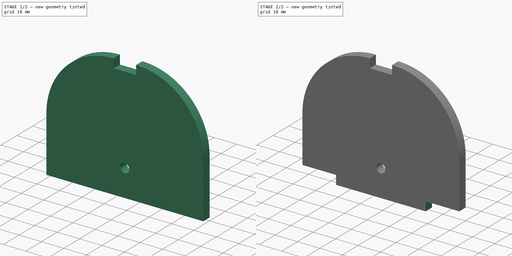
[diagram: build sequence overview — one tinted view per stage of 2, left to right]
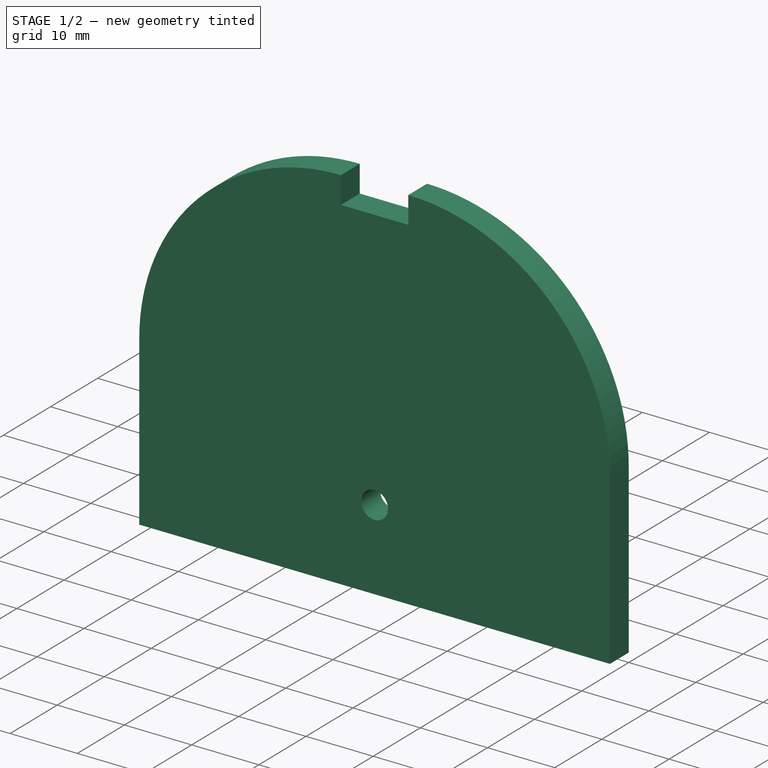
[diagram: stage 1 of 2 — iso view after this stage's code; geometry added in this stage tinted green]
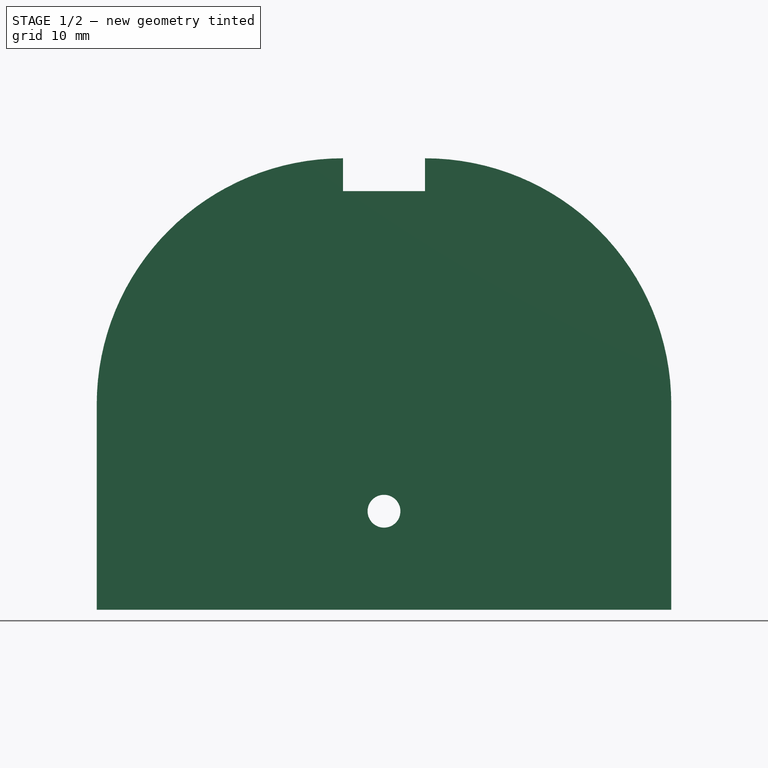
[diagram: stage 1 of 2 — front view after this stage's code; geometry added in this stage tinted green]
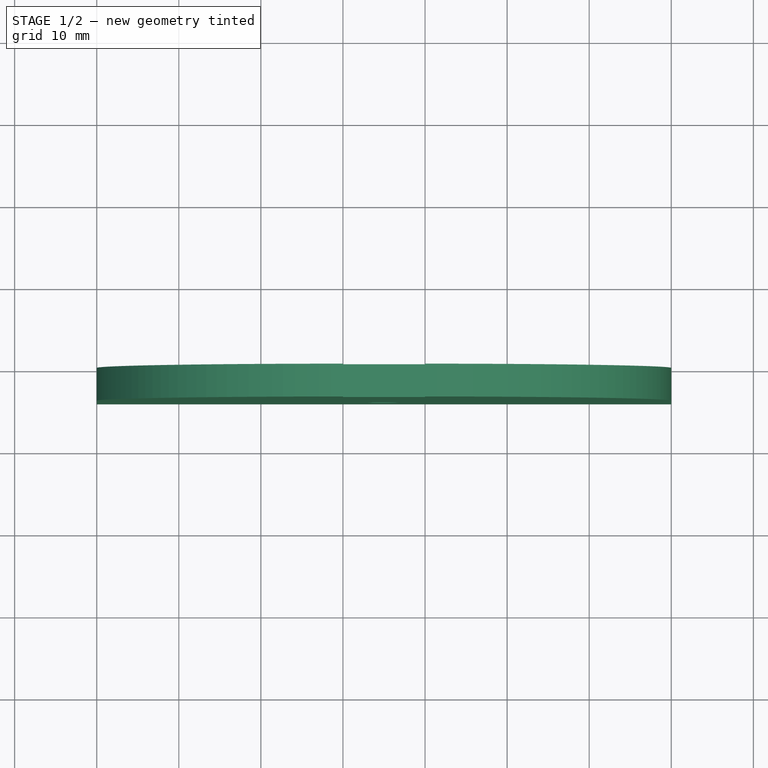
[diagram: stage 1 of 2 — top view after this stage's code; geometry added in this stage tinted green]
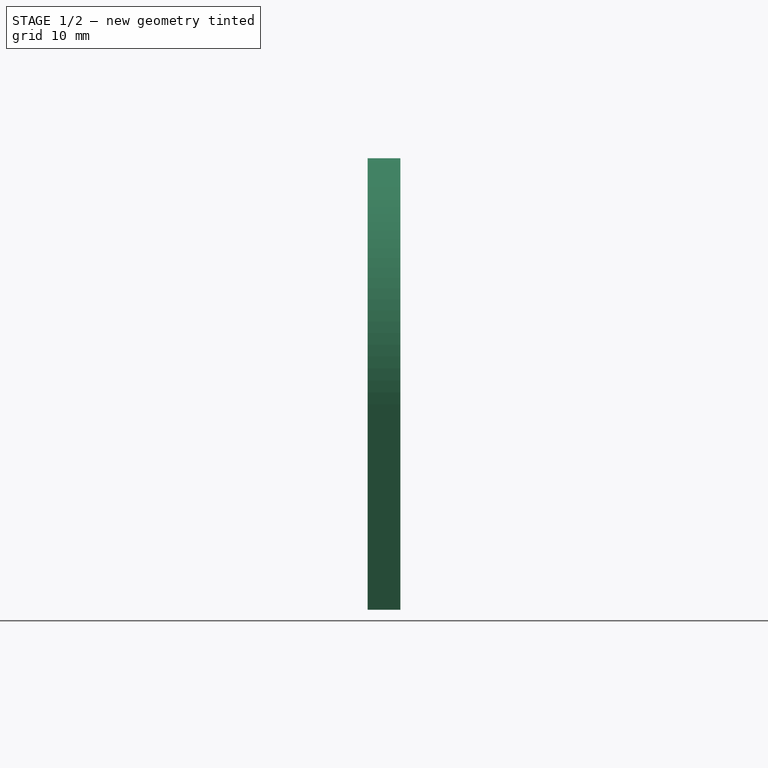
[diagram: stage 1 of 2 — right view after this stage's code; geometry added in this stage tinted green]
FCSTD DOCUMENT  (FreeCAD 1.0R39319 (Git))
Label: chassis_wheel_side
License: All rights reserved
LicenseURL: https://en.wikipedia.org/wiki/All_rights_reserved
objects: Sketcher::SketchObject×4, PartDesign::Pad×1, PartDesign::Pocket×1, PartDesign::Body×1
note: 15 computed .brp shape members not serialized (recipe doc carries the construction recipe); baked Part::Feature solids carry a one-line shape summary decoded from their .brp

FEATURE [Sketcher::SketchObject] Sketch
  ArcFitTolerance = 1e-06
  AttachmentSupport = -> [XZ_Plane]
  FullyConstrained = true
  MakeInternals = false
  MapMode = 5
  Placement = pos=(0,0,0) rot=(1,0,0;1.5708rad)
  sketch-geometry (14):
    g0: LineSegment [constr] StartX=35 StartY=55 StartZ=0 EndX=30 EndY=55 EndZ=0
    g1: LineSegment StartX=0 StartY=25 StartZ=0 EndX=0 EndY=0 EndZ=0
    g2: LineSegment StartX=70 StartY=25 StartZ=0 EndX=70 EndY=0 EndZ=0
    g3: ArcOfCircle CenterX=40 CenterY=25 CenterZ=0 NormalX=0 NormalY=0 NormalZ=1 AngleXU=0 Radius=30 StartAngle=0 EndAngle=1.5708
    g4: GeomPoint [constr] X=70 Y=55 Z=0
    g5: ArcOfCircle CenterX=30 CenterY=25 CenterZ=0 NormalX=0 NormalY=0 NormalZ=1 AngleXU=0 Radius=30 StartAngle=1.5708 EndAngle=3.14159
    g6: GeomPoint [constr] X=0 Y=55 Z=0
    g7: LineSegment StartX=0 StartY=0 StartZ=0 EndX=70 EndY=0 EndZ=0
    g8: LineSegment [constr] StartX=35 StartY=24 StartZ=0 EndX=35 EndY=0 EndZ=0
    g9: LineSegment [constr] StartX=35 StartY=55 StartZ=0 EndX=40 EndY=55 EndZ=0
    g10: Circle CenterX=35 CenterY=12 CenterZ=0 NormalX=0 NormalY=0 NormalZ=1 AngleXU=0 Radius=2
    g11: LineSegment StartX=30 StartY=55 StartZ=0 EndX=30 EndY=51 EndZ=0
    g12: LineSegment StartX=30 StartY=51 StartZ=0 EndX=40 EndY=51 EndZ=0
    g13: LineSegment StartX=40 StartY=51 StartZ=0 EndX=40 EndY=55 EndZ=0
  constraints (36):
    c: Horizontal(g0)
    c: Vertical(g1)
    c: DistanceY(g1,g6) = 55
    c: DistanceX(g4) = 70
    c: Vertical(g2)
    c: PointOnObject(g4,g0)
    c: PointOnObject(g4,g2)
    c: Tangent(g2,g3) = 1.5708
    c: PointOnObject(g6,g0)
    c: PointOnObject(g6,g1)
    c: Tangent(g0,g5) = -1.5708
    c: Tangent(g1,g5) = -1.5708
    c: Equal(g5,g3)
    c: Coincident(g7,g1)
    c: Coincident(g7,g2)
    c: Horizontal(g7)
    c: Symmetric(g7,g7,g8)
    c: PointOnObject(g0,g8)
    c: Coincident(g9,g0)
    c: Tangent(g9,g3) = 1.5708
    c: Horizontal(g9)
    c: Symmetric(g8,g8,g10)
    c: Diameter(g10) = 4
    c: DistanceY(g8,g10) = 12
    c: PointOnObject(g2,g-1)
    c: PointOnObject(g1,g-2)
    c: Coincident(g11,g0)
    c: Vertical(g11)
    c: Coincident(g12,g11)
    c: Horizontal(g12)
    c: Coincident(g13,g12)
    c: Coincident(g13,g3)
    c: Vertical(g13)
    c: DistanceY(g13,g13) = 4
    c: DistanceX(g12,g12) = 10
    c: Vertical(g8)
FEATURE [PartDesign::Pad] Pad
  Direction = (0,-1,2e-16)
  Length = 4
  Length2 = 10
  Placement = pos=(0,0,0) rot=(1,0,0;1.5708rad)
  Profile = -> Sketch
  ReferenceAxis = -> Sketch [N_Axis]
  Refine = true
  Suppressed = false
  Type = 0
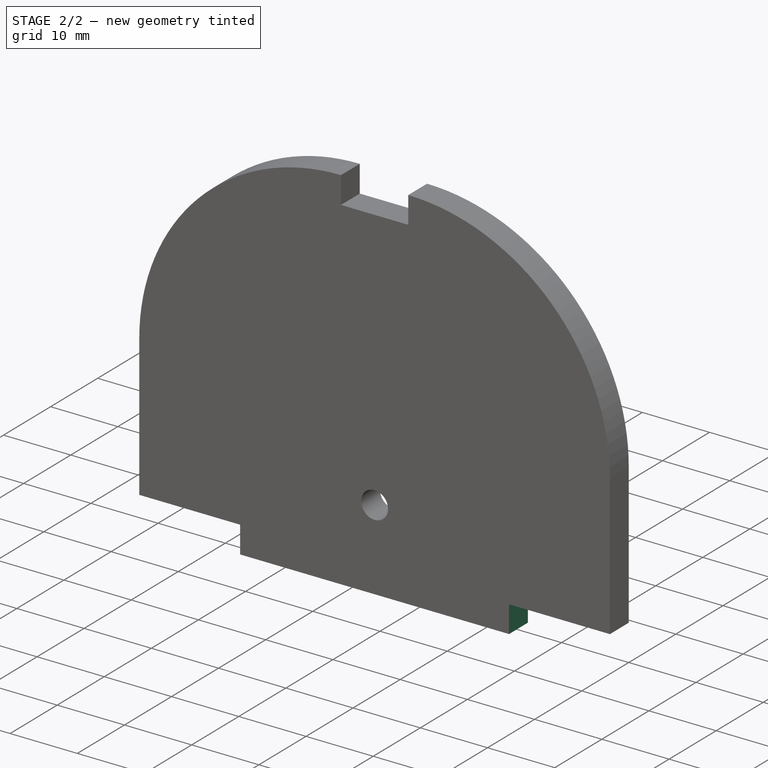
[diagram: stage 2 of 2 — iso view after this stage's code; geometry added in this stage tinted green]
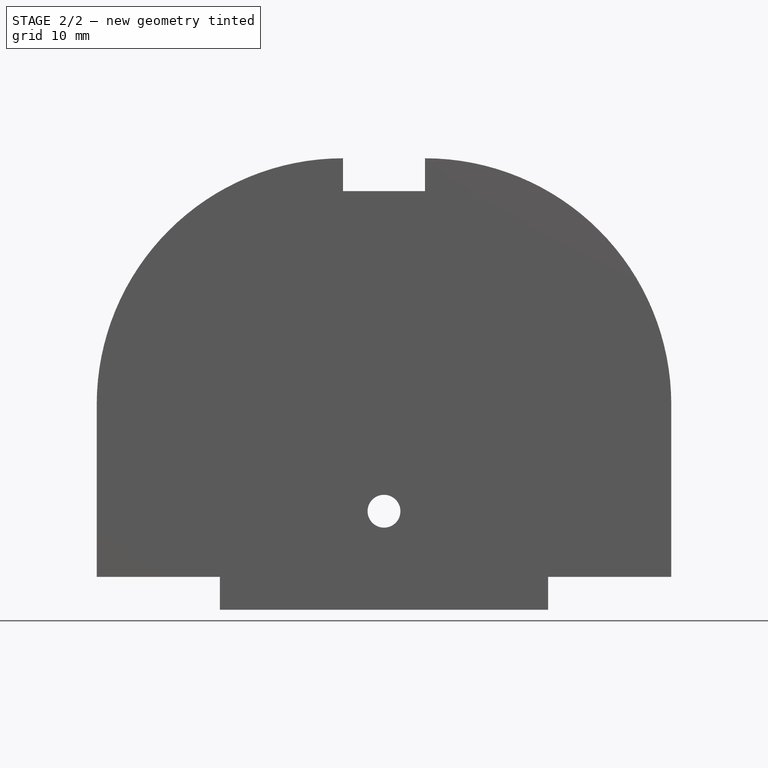
[diagram: stage 2 of 2 — front view after this stage's code; geometry added in this stage tinted green]
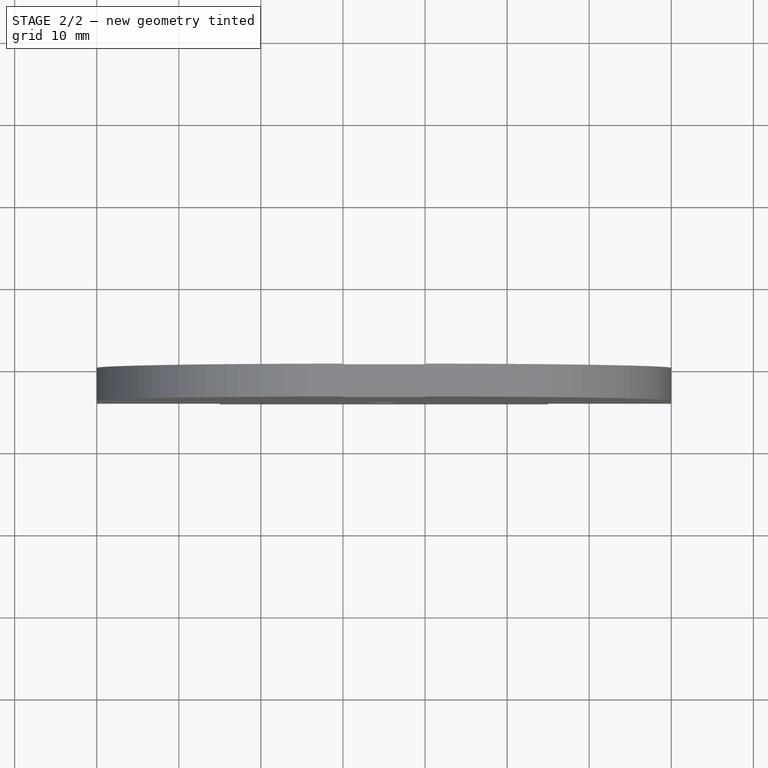
[diagram: stage 2 of 2 — top view after this stage's code; geometry added in this stage tinted green]
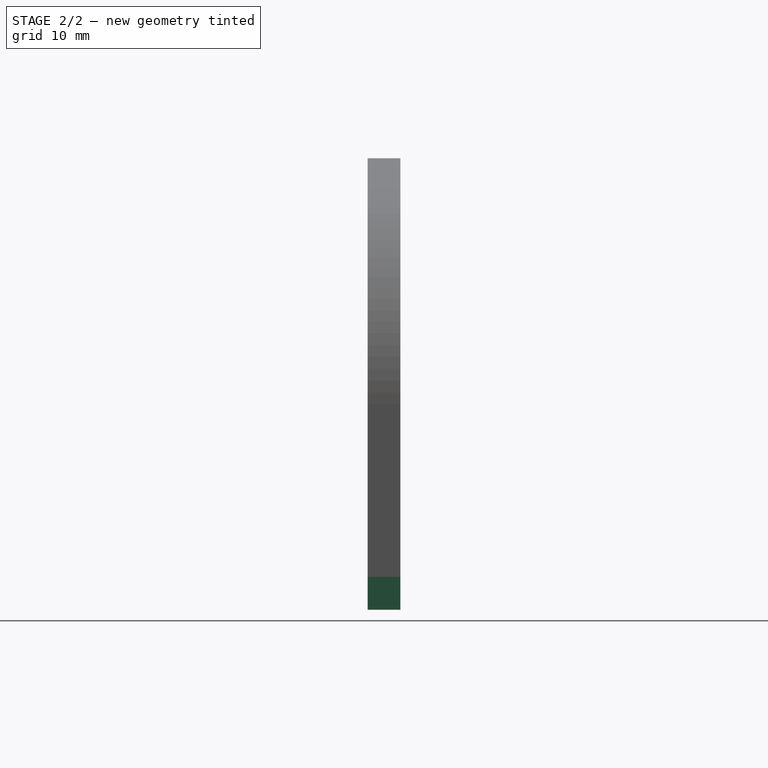
[diagram: stage 2 of 2 — right view after this stage's code; geometry added in this stage tinted green]
FEATURE [Sketcher::SketchObject] Sketch001
  ArcFitTolerance = 1e-06
  AttachmentSupport = -> [Pad]
  ExternalGeometry = -> [Pad]
  FullyConstrained = true
  MakeInternals = false
  MapMode = 5
  Placement = pos=(0,-4,0) rot=(1,0,0;1.5708rad)
  sketch-geometry (14):
    g0: LineSegment [constr] StartX=0 StartY=4 StartZ=0 EndX=15 EndY=4 EndZ=0
    g1: LineSegment [constr] StartX=70 StartY=4 StartZ=0 EndX=55 EndY=4 EndZ=0
    g2: LineSegment [constr] StartX=15 StartY=4 StartZ=0 EndX=15 EndY=0 EndZ=0
    g3: LineSegment [constr] StartX=15 StartY=0 StartZ=0 EndX=55 EndY=0 EndZ=0
    g4: LineSegment [constr] StartX=55 StartY=0 StartZ=0 EndX=55 EndY=4 EndZ=0
    g5: LineSegment [constr] StartX=55 StartY=4 StartZ=0 EndX=15 EndY=4 EndZ=0
    g6: LineSegment StartX=0 StartY=4 StartZ=0 EndX=0 EndY=0 EndZ=0
    g7: LineSegment StartX=0 StartY=0 StartZ=0 EndX=15 EndY=0 EndZ=0
    g8: LineSegment StartX=15 StartY=0 StartZ=0 EndX=15 EndY=4 EndZ=0
    g9: LineSegment StartX=15 StartY=4 StartZ=0 EndX=0 EndY=4 EndZ=0
    g10: LineSegment StartX=55 StartY=0 StartZ=0 EndX=70 EndY=0 EndZ=0
    g11: LineSegment StartX=70 StartY=0 StartZ=0 EndX=70 EndY=4 EndZ=0
    g12: LineSegment StartX=70 StartY=4 StartZ=0 EndX=55 EndY=4 EndZ=0
    g13: LineSegment StartX=55 StartY=4 StartZ=0 EndX=55 EndY=0 EndZ=0
  constraints (38):
    c: PointOnObject(g0,g-2)
    c: Horizontal(g0)
    c: PointOnObject(g1,g-3)
    c: Horizontal(g1)
    c: Coincident(g2,g3)
    c: Coincident(g3,g4)
    c: Coincident(g4,g5)
    c: Coincident(g5,g2)
    c: Vertical(g2)
    c: Vertical(g4)
    c: Horizontal(g3)
    c: Horizontal(g5)
    c: Coincident(g2,g0)
    c: PointOnObject(g3,g-1)
    c: Coincident(g4,g1)
    c: Equal(g0,g1)
    c: DistanceX(g5,g5) = 40
    c: DistanceY(g2,g2) = 4
    c: Coincident(g6,g7)
    c: Coincident(g7,g8)
    c: Coincident(g8,g9)
    c: Coincident(g9,g6)
    c: Vertical(g6)
    c: Vertical(g8)
    c: Horizontal(g7)
    c: Horizontal(g9)
    c: Coincident(g6,g0)
    c: Coincident(g7,g2)
    c: Coincident(g10,g11)
    c: Coincident(g11,g12)
    c: Coincident(g12,g13)
    c: Coincident(g13,g10)
    c: Horizontal(g10)
    c: Horizontal(g12)
    c: Vertical(g11)
    c: Vertical(g13)
    c: Coincident(g10,g3)
    c: Coincident(g11,g1)
FEATURE [PartDesign::Pocket] Pocket
  BaseFeature = -> Pad
  Direction = (0,1,-2e-16)
  Length = 5
  Length2 = 5
  Placement = pos=(0,0,0) rot=(1,0,0;1.5708rad)
  Profile = -> Sketch001
  ReferenceAxis = -> Sketch001 [N_Axis]
  Refine = true
  Suppressed = false
  Type = 0
FEATURE [Sketcher::SketchObject] Sketch002
  ArcFitTolerance = 1e-06
  AttachmentSupport = -> [XY_Plane]
  FullyConstrained = true
  MakeInternals = false
  MapMode = 5
FEATURE [Sketcher::SketchObject] Sketch003
  ArcFitTolerance = 1e-06
  AttachmentSupport = -> [XZ_Plane]
  ExternalGeometry = -> [Pocket]
  FullyConstrained = true
  MakeInternals = false
  MapMode = 5
  Placement = pos=(0,0,0) rot=(1,0,0;1.5708rad)
  sketch-geometry (8):
    g0: LineSegment StartX=70 StartY=4 StartZ=0 EndX=70 EndY=10 EndZ=0
    g1: LineSegment StartX=70 StartY=10 StartZ=0 EndX=64 EndY=10 EndZ=0
    g2: LineSegment StartX=64 StartY=10 StartZ=0 EndX=64 EndY=4 EndZ=0
    g3: LineSegment StartX=64 StartY=4 StartZ=0 EndX=70 EndY=4 EndZ=0
    g4: LineSegment StartX=0 StartY=4 StartZ=0 EndX=6 EndY=4 EndZ=0
    g5: LineSegment StartX=6 StartY=4 StartZ=0 EndX=6 EndY=10 EndZ=0
    g6: LineSegment StartX=6 StartY=10 StartZ=0 EndX=0 EndY=10 EndZ=0
    g7: LineSegment StartX=0 StartY=10 StartZ=0 EndX=0 EndY=4 EndZ=0
  constraints (24):
    c: Coincident(g0,g1)
    c: Coincident(g1,g2)
    c: Coincident(g2,g3)
    c: Coincident(g3,g0)
    c: Vertical(g0)
    c: Vertical(g2)
    c: Horizontal(g1)
    c: Horizontal(g3)
    c: Coincident(g0,g-5)
    c: Coincident(g4,g5)
    c: Coincident(g5,g6)
    c: Coincident(g6,g7)
    c: Coincident(g7,g4)
    c: Horizontal(g4)
    c: Horizontal(g6)
    c: Vertical(g5)
    c: Vertical(g7)
    c: Coincident(g4,g-3)
    c: Equal(g2,g5)
    c: Equal(g1,g2)
    c: Equal(g5,g6)
    c: DistanceY(g2,g2) = 6
    c: DistanceX(g1,g1) = 6
    c: DistanceX(g6,g6) = 6
FEATURE [PartDesign::Body] Body
  AllowCompound = false
  Group = -> [Sketch,Pad,Sketch001,Pocket,Sketch002,Sketch003]
  Origin = -> Origin
  Tip = -> Pocket
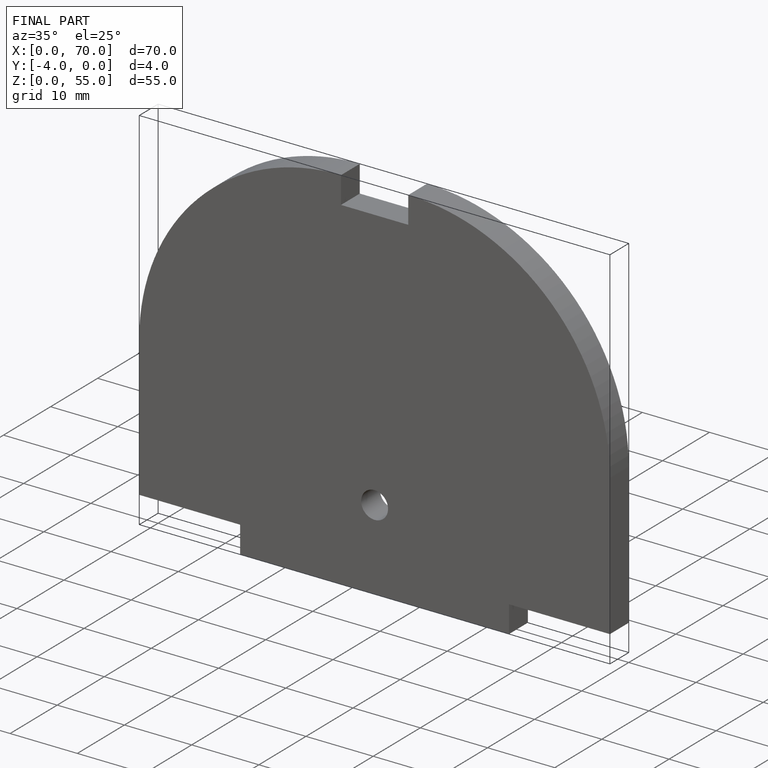
[diagram: finished part — iso view with bounding-box wireframe]
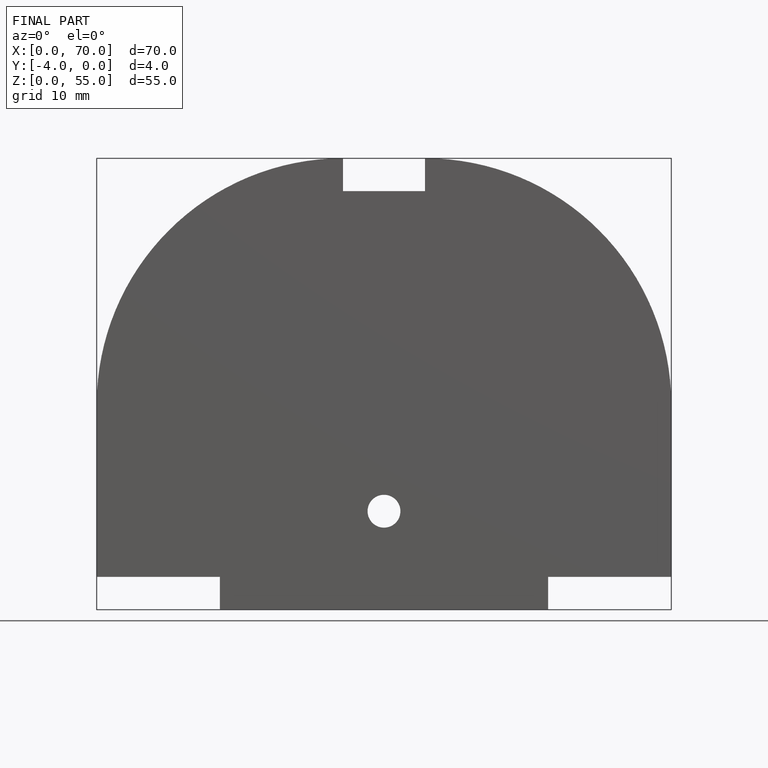
[diagram: finished part — front view with bounding-box wireframe]
